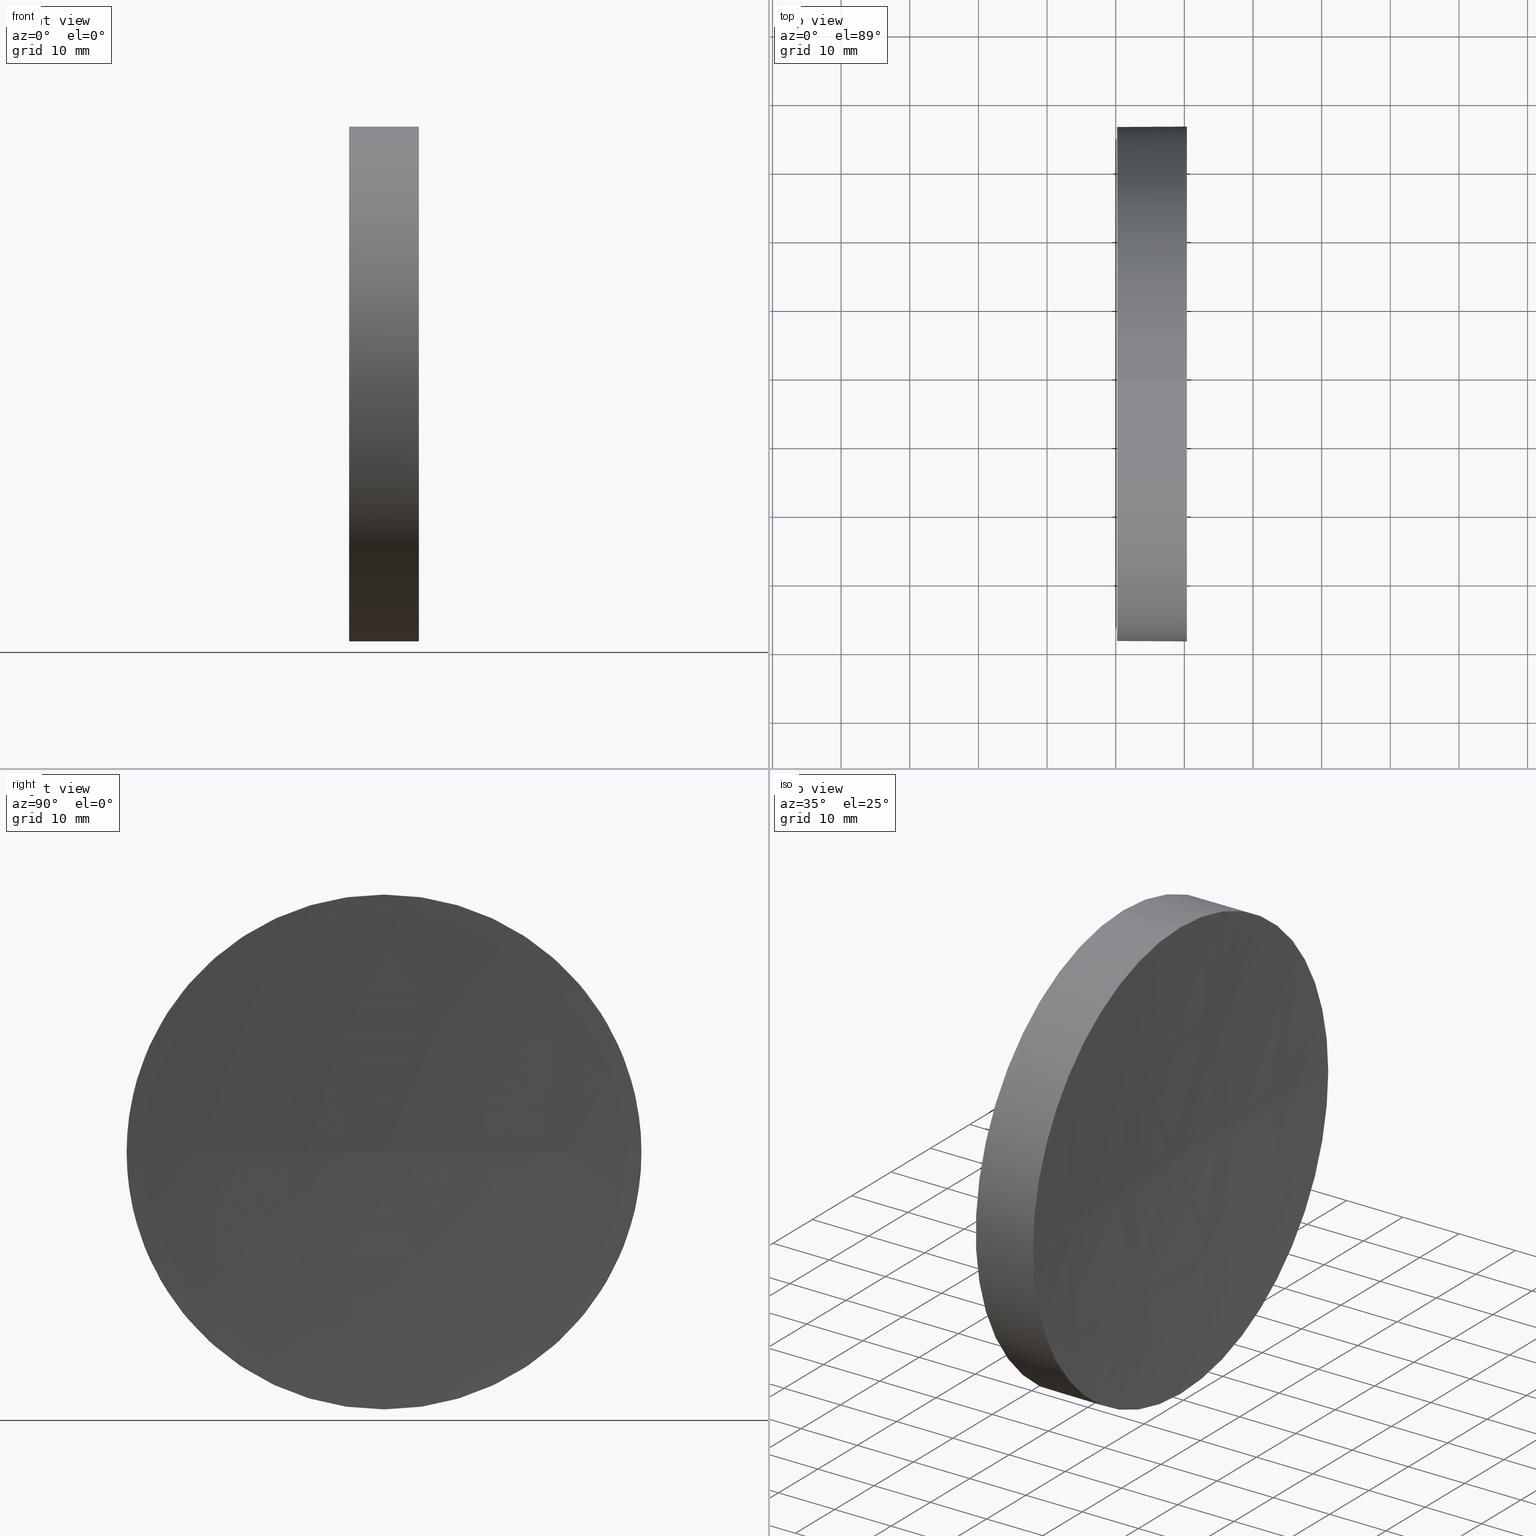
[diagram: canonical four-view strip — front | top / right | iso, engineering-drawing reading convention]
A machine part, canonical four-view strip (front | top / right | iso — engineering-drawing reading convention). The complete STEP part file that produces these views, byte-faithful:
ISO-10303-21;
HEADER;
FILE_DESCRIPTION (( 'STEP AP214' ),
    '1' );
FILE_NAME ('270063.STEP',
    '2019-07-23T08:53:11',
    ( '' ),
    ( '' ),
    'SwSTEP 2.0',
    'SolidWorks 2016',
    '' );
FILE_SCHEMA (( 'AUTOMOTIVE_DESIGN' ));
ENDSEC;

DATA;
#1 = DIRECTION ( 'NONE',  ( -1.000000000000000000, -0.0000000000000000000, -0.0000000000000000000 ) ) ;
#2 = CIRCLE ( 'NONE', #160, 37.50000000000000700 ) ;
#3 = SURFACE_SIDE_STYLE ('',( #157 ) ) ;
#4 = CARTESIAN_POINT ( 'NONE',  ( 240.3726307063705000, 138.7560422467448700, 0.0000000000000000000 ) ) ;
#5 = EDGE_CURVE ( 'NONE', #101, #154, #2, .T. ) ;
#6 = ADVANCED_FACE ( 'NONE', ( #152 ), #31, .T. ) ;
#7 = PRODUCT_DEFINITION_CONTEXT ( 'detailed design', #10, 'design' ) ;
#8 = PRODUCT_CONTEXT ( 'NONE', #139, 'mechanical' ) ;
#9 = DIRECTION ( 'NONE',  ( -1.000000000000000000, -0.0000000000000000000, -0.0000000000000000000 ) ) ;
#10 = APPLICATION_CONTEXT ( 'automotive_design' ) ;
#11 = DIRECTION ( 'NONE',  ( 0.0000000000000000000, 0.0000000000000000000, -1.000000000000000000 ) ) ;
#12 = COLOUR_RGB ( '',1.000000000000000000, 1.000000000000000000, 1.000000000000000000 ) ;
#13 = DIRECTION ( 'NONE',  ( 0.0000000000000000000, 0.0000000000000000000, 1.000000000000000000 ) ) ;
#14 = AXIS2_PLACEMENT_3D ( 'NONE', #51, #68, #130 ) ;
#15 = FILL_AREA_STYLE ('',( #61 ) ) ;
#16 = ORIENTED_EDGE ( 'NONE', *, *, #48, .F. ) ;
#17 = ADVANCED_FACE ( 'NONE', ( #184 ), #66, .F. ) ;
#18 = CARTESIAN_POINT ( 'NONE',  ( 839.1996090565446600, 138.7560422467440700, 0.0000000000000000000 ) ) ;
#19 = EDGE_CURVE ( 'NONE', #60, #21, #104, .T. ) ;
#20 = PRESENTATION_STYLE_ASSIGNMENT (( #180 ) ) ;
#21 = VERTEX_POINT ( 'NONE', #99 ) ;
#22 = DIRECTION ( 'NONE',  ( -1.000000000000000000, -0.0000000000000000000, -0.0000000000000000000 ) ) ;
#23 = ADVANCED_BREP_SHAPE_REPRESENTATION ( '270063', ( #127, #153 ), #111 ) ;
#24 = ORIENTED_EDGE ( 'NONE', *, *, #102, .F. ) ;
#25 = CIRCLE ( 'NONE', #156, 37.50000000000000700 ) ;
#26 = CARTESIAN_POINT ( 'NONE',  ( 217.9702860043302100, 138.7560422467448700, 37.50000000000000700 ) ) ;
#27 = CARTESIAN_POINT ( 'NONE',  ( 240.3726307063705000, 176.2560422467451800, 0.0000000000000000000 ) ) ;
#28 = ORIENTED_EDGE ( 'NONE', *, *, #150, .F. ) ;
#29 = DIRECTION ( 'NONE',  ( 0.0000000000000000000, 0.0000000000000000000, -1.000000000000000000 ) ) ;
#30 = AXIS2_PLACEMENT_3D ( 'NONE', #147, #146, #117 ) ;
#31 = CYLINDRICAL_SURFACE ( 'NONE', #167, 37.50000000000000700 ) ;
#32 = ADVANCED_FACE ( 'NONE', ( #145 ), #142, .T. ) ;
#33 = APPLICATION_PROTOCOL_DEFINITION ( 'draft international standard', 'automotive_design', 1998, #139 ) ;
#34 = DIRECTION ( 'NONE',  ( 0.0000000000000000000, 0.0000000000000000000, -1.000000000000000000 ) ) ;
#35 = CARTESIAN_POINT ( 'NONE',  ( 0.0000000000000000000, 0.0000000000000000000, 0.0000000000000000000 ) ) ;
#36 = ORIENTED_EDGE ( 'NONE', *, *, #37, .F. ) ;
#37 = EDGE_CURVE ( 'NONE', #112, #101, #63, .T. ) ;
#38 = AXIS2_PLACEMENT_3D ( 'NONE', #182, #165, #155 ) ;
#39 = PRESENTATION_STYLE_ASSIGNMENT (( #81 ) ) ;
#40 =( NAMED_UNIT ( * ) PLANE_ANGLE_UNIT ( ) SI_UNIT ( $, .RADIAN. ) );
#41 = EDGE_CURVE ( 'NONE', #112, #108, #97, .T. ) ;
#42 = CARTESIAN_POINT ( 'NONE',  ( 230.1996119052661200, 138.7560422467448700, 0.0000000000000000000 ) ) ;
#43 = SPHERICAL_SURFACE ( 'NONE', #85, 600.0000000000001100 ) ;
#44 = DIRECTION ( 'NONE',  ( 1.000000000000000000, 0.0000000000000000000, 0.0000000000000000000 ) ) ;
#45 = AXIS2_PLACEMENT_3D ( 'NONE', #4, #100, #119 ) ;
#46 = DIRECTION ( 'NONE',  ( 0.0000000000000000000, 0.0000000000000000000, 1.000000000000000000 ) ) ;
#47 =( GEOMETRIC_REPRESENTATION_CONTEXT ( 3 ) GLOBAL_UNCERTAINTY_ASSIGNED_CONTEXT ( ( #90 ) ) GLOBAL_UNIT_ASSIGNED_CONTEXT ( ( #82, #40, #161 ) ) REPRESENTATION_CONTEXT ( 'NONE', 'WORKASPACE' ) );
#48 = EDGE_CURVE ( 'NONE', #108, #57, #178, .T. ) ;
#49 = SURFACE_SIDE_STYLE ('',( #118 ) ) ;
#50 = CLOSED_SHELL ( 'NONE', ( #32, #17, #166, #6, #151 ) ) ;
#51 = CARTESIAN_POINT ( 'NONE',  ( 217.9702860043302100, 138.7560422467448700, 0.0000000000000000000 ) ) ;
#52 = CARTESIAN_POINT ( 'NONE',  ( 240.3726307063705000, 138.7560422467448700, 37.50000000000000700 ) ) ;
#53 = SHAPE_DEFINITION_REPRESENTATION ( #159, #23 ) ;
#54 = DIRECTION ( 'NONE',  ( 1.000000000000000000, 0.0000000000000000000, 0.0000000000000000000 ) ) ;
#55 = UNCERTAINTY_MEASURE_WITH_UNIT (LENGTH_MEASURE( 1.000000000000000100E-005 ), #77, 'distance_accuracy_value', 'NONE');
#56 =( GEOMETRIC_REPRESENTATION_CONTEXT ( 3 ) GLOBAL_UNCERTAINTY_ASSIGNED_CONTEXT ( ( #116 ) ) GLOBAL_UNIT_ASSIGNED_CONTEXT ( ( #106, #89, #72 ) ) REPRESENTATION_CONTEXT ( 'NONE', 'WORKASPACE' ) );
#57 = VERTEX_POINT ( 'NONE', #132 ) ;
#58 = VECTOR ( 'NONE', #22, 1000.000000000000000 ) ;
#59 = DIRECTION ( 'NONE',  ( 0.0000000000000000000, 0.0000000000000000000, 1.000000000000000000 ) ) ;
#60 = VERTEX_POINT ( 'NONE', #148 ) ;
#61 = FILL_AREA_STYLE_COLOUR ( '', #12 ) ;
#62 = ORIENTED_EDGE ( 'NONE', *, *, #186, .F. ) ;
#63 = LINE ( 'NONE', #26, #137 ) ;
#64 = ORIENTED_EDGE ( 'NONE', *, *, #19, .T. ) ;
#65 = FILL_AREA_STYLE ('',( #95 ) ) ;
#66 = SPHERICAL_SURFACE ( 'NONE', #71, 600.0000000000001100 ) ;
#67 = STYLED_ITEM ( 'NONE', ( #20 ), #23 ) ;
#68 = DIRECTION ( 'NONE',  ( -1.000000000000000000, -0.0000000000000000000, -0.0000000000000000000 ) ) ;
#69 = ORIENTED_EDGE ( 'NONE', *, *, #41, .F. ) ;
#70 = CARTESIAN_POINT ( 'NONE',  ( 230.1996119052661200, 138.7560422467448700, 37.50000000000000700 ) ) ;
#71 = AXIS2_PLACEMENT_3D ( 'NONE', #18, #34, #168 ) ;
#72 =( NAMED_UNIT ( * ) SI_UNIT ( $, .STERADIAN. ) SOLID_ANGLE_UNIT ( ) );
#73 = CARTESIAN_POINT ( 'NONE',  ( 240.3726307063705000, 138.7560422467448700, 0.0000000000000000000 ) ) ;
#74 = COLOUR_RGB ( '',1.000000000000000000, 1.000000000000000000, 1.000000000000000000 ) ;
#75 = FACE_OUTER_BOUND ( 'NONE', #141, .T. ) ;
#76 =( NAMED_UNIT ( * ) SI_UNIT ( $, .STERADIAN. ) SOLID_ANGLE_UNIT ( ) );
#77 =( LENGTH_UNIT ( ) NAMED_UNIT ( * ) SI_UNIT ( .MILLI., .METRE. ) );
#78 = PRESENTATION_LAYER_ASSIGNMENT (  '', '', ( #98 ) ) ;
#79 = FACE_OUTER_BOUND ( 'NONE', #143, .T. ) ;
#80 = ORIENTED_EDGE ( 'NONE', *, *, #123, .T. ) ;
#81 = SURFACE_STYLE_USAGE ( .BOTH. , #49 ) ;
#82 =( LENGTH_UNIT ( ) NAMED_UNIT ( * ) SI_UNIT ( .MILLI., .METRE. ) );
#83 = PRODUCT ( '270063', '270063', '', ( #8 ) ) ;
#84 = CARTESIAN_POINT ( 'NONE',  ( 839.1996090565446600, 138.7560422467440700, 0.0000000000000000000 ) ) ;
#85 = AXIS2_PLACEMENT_3D ( 'NONE', #122, #11, #109 ) ;
#86 = APPLICATION_PROTOCOL_DEFINITION ( 'draft international standard', 'automotive_design', 1998, #10 ) ;
#87 = ORIENTED_EDGE ( 'NONE', *, *, #114, .T. ) ;
#88 = DIRECTION ( 'NONE',  ( -1.000000000000000000, -0.0000000000000000000, -0.0000000000000000000 ) ) ;
#89 =( NAMED_UNIT ( * ) PLANE_ANGLE_UNIT ( ) SI_UNIT ( $, .RADIAN. ) );
#90 = UNCERTAINTY_MEASURE_WITH_UNIT (LENGTH_MEASURE( 1.000000000000000100E-005 ), #82, 'distance_accuracy_value', 'NONE');
#91 = ORIENTED_EDGE ( 'NONE', *, *, #37, .T. ) ;
#92 = AXIS2_PLACEMENT_3D ( 'NONE', #113, #54, #29 ) ;
#93 = EDGE_LOOP ( 'NONE', ( #110, #136, #176, #36, #149 ) ) ;
#94 = PLANE ( 'NONE',  #92 ) ;
#95 = FILL_AREA_STYLE_COLOUR ( '', #74 ) ;
#96 = ORIENTED_EDGE ( 'NONE', *, *, #19, .F. ) ;
#97 = CIRCLE ( 'NONE', #134, 37.50000000000000700 ) ;
#98 = STYLED_ITEM ( 'NONE', ( #39 ), #127 ) ;
#99 = CARTESIAN_POINT ( 'NONE',  ( 239.1996090565445700, 138.7560422467441000, 0.0000000000000000000 ) ) ;
#100 = DIRECTION ( 'NONE',  ( -1.000000000000000000, -0.0000000000000000000, -0.0000000000000000000 ) ) ;
#101 = VERTEX_POINT ( 'NONE', #70 ) ;
#102 = EDGE_CURVE ( 'NONE', #108, #21, #173, .T. ) ;
#103 = EDGE_LOOP ( 'NONE', ( #129, #64, #24, #69 ) ) ;
#104 = CIRCLE ( 'NONE', #30, 600.0000000000001100 ) ;
#105 = DIRECTION ( 'NONE',  ( 0.0000000000000000000, 0.0000000000000000000, 1.000000000000000000 ) ) ;
#106 =( LENGTH_UNIT ( ) NAMED_UNIT ( * ) SI_UNIT ( .MILLI., .METRE. ) );
#107 = DIRECTION ( 'NONE',  ( -1.000000000000000000, -0.0000000000000000000, -0.0000000000000000000 ) ) ;
#108 = VERTEX_POINT ( 'NONE', #27 ) ;
#109 = DIRECTION ( 'NONE',  ( 0.0000000000000000000, 1.000000000000000000, 0.0000000000000000000 ) ) ;
#110 = ORIENTED_EDGE ( 'NONE', *, *, #48, .T. ) ;
#111 =( GEOMETRIC_REPRESENTATION_CONTEXT ( 3 ) GLOBAL_UNCERTAINTY_ASSIGNED_CONTEXT ( ( #55 ) ) GLOBAL_UNIT_ASSIGNED_CONTEXT ( ( #77, #183, #76 ) ) REPRESENTATION_CONTEXT ( 'NONE', 'WORKASPACE' ) );
#112 = VERTEX_POINT ( 'NONE', #52 ) ;
#113 = CARTESIAN_POINT ( 'NONE',  ( 230.1996119052661200, 138.7560422467448700, 0.0000000000000000000 ) ) ;
#114 = EDGE_CURVE ( 'NONE', #154, #101, #25, .T. ) ;
#115 = CARTESIAN_POINT ( 'NONE',  ( 217.9702860043302100, 138.7560422467448700, -37.50000000000000700 ) ) ;
#116 = UNCERTAINTY_MEASURE_WITH_UNIT (LENGTH_MEASURE( 1.000000000000000100E-005 ), #106, 'distance_accuracy_value', 'NONE');
#117 = DIRECTION ( 'NONE',  ( 0.0000000000000000000, 1.000000000000000000, 1.224646799147353200E-016 ) ) ;
#118 = SURFACE_STYLE_FILL_AREA ( #65 ) ;
#119 = DIRECTION ( 'NONE',  ( 0.0000000000000000000, 0.0000000000000000000, 1.000000000000000000 ) ) ;
#120 = PRESENTATION_LAYER_ASSIGNMENT (  '', '', ( #67 ) ) ;
#121 = CARTESIAN_POINT ( 'NONE',  ( 217.9702860043302100, 138.7560422467448700, 0.0000000000000000000 ) ) ;
#122 = CARTESIAN_POINT ( 'NONE',  ( 839.1996090565446600, 138.7560422467440700, 0.0000000000000000000 ) ) ;
#123 = EDGE_CURVE ( 'NONE', #60, #112, #172, .T. ) ;
#124 = MECHANICAL_DESIGN_GEOMETRIC_PRESENTATION_REPRESENTATION (  '', ( #98 ), #47 ) ;
#125 = CARTESIAN_POINT ( 'NONE',  ( 240.3726307063705000, 138.7560422467448700, 0.0000000000000000000 ) ) ;
#126 = CARTESIAN_POINT ( 'NONE',  ( 230.1996119052661200, 138.7560422467448700, -37.50000000000000700 ) ) ;
#127 = MANIFOLD_SOLID_BREP ( '��ת1', #50 ) ;
#128 = MECHANICAL_DESIGN_GEOMETRIC_PRESENTATION_REPRESENTATION (  '', ( #67 ), #56 ) ;
#129 = ORIENTED_EDGE ( 'NONE', *, *, #123, .F. ) ;
#130 = DIRECTION ( 'NONE',  ( 0.0000000000000000000, 0.0000000000000000000, 1.000000000000000000 ) ) ;
#131 = DIRECTION ( 'NONE',  ( 0.0000000000000000000, 0.0000000000000000000, 1.000000000000000000 ) ) ;
#132 = CARTESIAN_POINT ( 'NONE',  ( 240.3726307063705000, 138.7560422467448700, -37.50000000000000700 ) ) ;
#133 = DIRECTION ( 'NONE',  ( 0.0000000000000000000, 0.0000000000000000000, 1.000000000000000000 ) ) ;
#134 = AXIS2_PLACEMENT_3D ( 'NONE', #73, #88, #131 ) ;
#135 = DIRECTION ( 'NONE',  ( 1.000000000000000000, 0.0000000000000000000, 0.0000000000000000000 ) ) ;
#136 = ORIENTED_EDGE ( 'NONE', *, *, #150, .T. ) ;
#137 = VECTOR ( 'NONE', #174, 1000.000000000000000 ) ;
#138 = CARTESIAN_POINT ( 'NONE',  ( 230.1996119052661200, 138.7560422467448700, 0.0000000000000000000 ) ) ;
#139 = APPLICATION_CONTEXT ( 'automotive_design' ) ;
#140 = ORIENTED_EDGE ( 'NONE', *, *, #102, .T. ) ;
#141 = EDGE_LOOP ( 'NONE', ( #96, #62, #16, #140 ) ) ;
#142 = CYLINDRICAL_SURFACE ( 'NONE', #14, 37.50000000000000700 ) ;
#143 = EDGE_LOOP ( 'NONE', ( #185, #87 ) ) ;
#144 = AXIS2_PLACEMENT_3D ( 'NONE', #84, #133, #44 ) ;
#145 = FACE_OUTER_BOUND ( 'NONE', #93, .T. ) ;
#146 = DIRECTION ( 'NONE',  ( 0.0000000000000000000, 1.224646799147353200E-016, -1.000000000000000000 ) ) ;
#147 = CARTESIAN_POINT ( 'NONE',  ( 839.1996090565446600, 138.7560422467440700, 0.0000000000000000000 ) ) ;
#148 = CARTESIAN_POINT ( 'NONE',  ( 240.3726307063705000, 101.2560422467437500, -4.592425496802614600E-015 ) ) ;
#149 = ORIENTED_EDGE ( 'NONE', *, *, #41, .T. ) ;
#150 = EDGE_CURVE ( 'NONE', #57, #154, #164, .T. ) ;
#151 = ADVANCED_FACE ( 'NONE', ( #79 ), #94, .F. ) ;
#152 = FACE_OUTER_BOUND ( 'NONE', #181, .T. ) ;
#153 = AXIS2_PLACEMENT_3D ( 'NONE', #35, #105, #135 ) ;
#154 = VERTEX_POINT ( 'NONE', #126 ) ;
#155 = DIRECTION ( 'NONE',  ( 0.0000000000000000000, 0.0000000000000000000, 1.000000000000000000 ) ) ;
#156 = AXIS2_PLACEMENT_3D ( 'NONE', #42, #175, #163 ) ;
#157 = SURFACE_STYLE_FILL_AREA ( #15 ) ;
#158 = CIRCLE ( 'NONE', #38, 37.50000000000000700 ) ;
#159 = PRODUCT_DEFINITION_SHAPE ( 'NONE', 'NONE',  #162 ) ;
#160 = AXIS2_PLACEMENT_3D ( 'NONE', #138, #9, #46 ) ;
#161 =( NAMED_UNIT ( * ) SI_UNIT ( $, .STERADIAN. ) SOLID_ANGLE_UNIT ( ) );
#162 = PRODUCT_DEFINITION ( 'δ֪', '', #179, #7 ) ;
#163 = DIRECTION ( 'NONE',  ( 0.0000000000000000000, 0.0000000000000000000, 1.000000000000000000 ) ) ;
#164 = LINE ( 'NONE', #115, #58 ) ;
#165 = DIRECTION ( 'NONE',  ( -1.000000000000000000, -0.0000000000000000000, -0.0000000000000000000 ) ) ;
#166 = ADVANCED_FACE ( 'NONE', ( #75 ), #43, .F. ) ;
#167 = AXIS2_PLACEMENT_3D ( 'NONE', #121, #107, #59 ) ;
#168 = DIRECTION ( 'NONE',  ( 0.0000000000000000000, 1.000000000000000000, 0.0000000000000000000 ) ) ;
#169 = ORIENTED_EDGE ( 'NONE', *, *, #114, .F. ) ;
#170 = PRODUCT_RELATED_PRODUCT_CATEGORY ( 'part', '', ( #83 ) ) ;
#171 = AXIS2_PLACEMENT_3D ( 'NONE', #125, #1, #13 ) ;
#172 = CIRCLE ( 'NONE', #171, 37.50000000000000700 ) ;
#173 = CIRCLE ( 'NONE', #144, 600.0000000000000000 ) ;
#174 = DIRECTION ( 'NONE',  ( -1.000000000000000000, -0.0000000000000000000, -0.0000000000000000000 ) ) ;
#175 = DIRECTION ( 'NONE',  ( -1.000000000000000000, -0.0000000000000000000, -0.0000000000000000000 ) ) ;
#176 = ORIENTED_EDGE ( 'NONE', *, *, #5, .F. ) ;
#177 = ORIENTED_EDGE ( 'NONE', *, *, #186, .T. ) ;
#178 = CIRCLE ( 'NONE', #45, 37.50000000000000700 ) ;
#179 = PRODUCT_DEFINITION_FORMATION_WITH_SPECIFIED_SOURCE ( '�κ�', '', #83, .NOT_KNOWN. ) ;
#180 = SURFACE_STYLE_USAGE ( .BOTH. , #3 ) ;
#181 = EDGE_LOOP ( 'NONE', ( #28, #177, #80, #91, #169 ) ) ;
#182 = CARTESIAN_POINT ( 'NONE',  ( 240.3726307063705000, 138.7560422467448700, 0.0000000000000000000 ) ) ;
#183 =( NAMED_UNIT ( * ) PLANE_ANGLE_UNIT ( ) SI_UNIT ( $, .RADIAN. ) );
#184 = FACE_OUTER_BOUND ( 'NONE', #103, .T. ) ;
#185 = ORIENTED_EDGE ( 'NONE', *, *, #5, .T. ) ;
#186 = EDGE_CURVE ( 'NONE', #57, #60, #158, .T. ) ;
ENDSEC;
END-ISO-10303-21;
